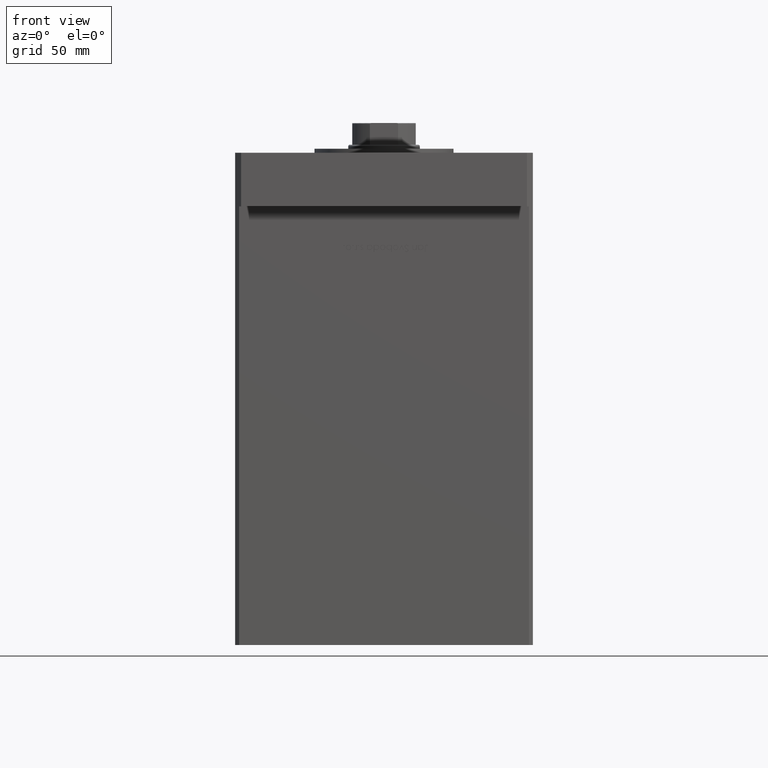
[diagram: clean part render]
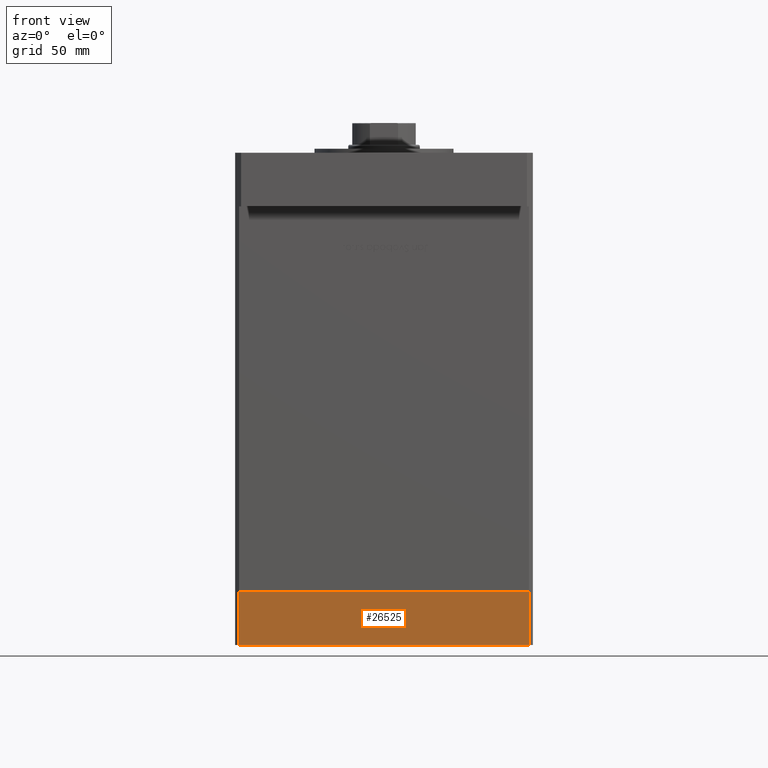
[diagram: same view with one face highlighted and labeled with its STEP entity id]
A machine part, front view. The second image highlights one B-rep face of the part: STEP entity #26525.
In plain terms, the highlighted planar face has unit normal (-0, -1, -0).
Its self-contained STEP definition (entity closure, byte-faithful):
#944 = LINE ( 'NONE', #33973, #9673 ) ;
#2351 = EDGE_CURVE ( 'NONE', #40370, #16569, #46097, .T. ) ;
#2500 = ORIENTED_EDGE ( 'NONE', *, *, #28938, .T. ) ;
#3064 = LINE ( 'NONE', #31494, #17205 ) ;
#5935 = ORIENTED_EDGE ( 'NONE', *, *, #28152, .T. ) ;
#6599 = DIRECTION ( 'NONE',  ( 1.000000000000000000, 9.505334114941407284E-17, 0.000000000000000000 ) ) ;
#8320 = FACE_OUTER_BOUND ( 'NONE', #45238, .T. ) ;
#9673 = VECTOR ( 'NONE', #13676, 1000.000000000000000 ) ;
#11156 = CARTESIAN_POINT ( 'NONE',  ( 73.00000000000001421, -62.50000000000001421, -27.00000000000000000 ) ) ;
#12916 = CARTESIAN_POINT ( 'NONE',  ( -73.00000000000001421, -62.50000000000002842, -27.00000000000000000 ) ) ;
#13676 = DIRECTION ( 'NONE',  ( 1.000000000000000000, 9.505334114941407284E-17, 0.000000000000000000 ) ) ;
#14265 = CARTESIAN_POINT ( 'NONE',  ( 73.00000000000001421, -62.50000000000001421, 0.000000000000000000 ) ) ;
#14460 = DIRECTION ( 'NONE',  ( 9.505334114941407284E-17, -1.000000000000000000, 0.000000000000000000 ) ) ;
#16569 = VERTEX_POINT ( 'NONE', #25301 ) ;
#17205 = VECTOR ( 'NONE', #19593, 1000.000000000000000 ) ;
#18681 = VERTEX_POINT ( 'NONE', #11156 ) ;
#19593 = DIRECTION ( 'NONE',  ( 1.000000000000000000, 9.505334114941407284E-17, 0.000000000000000000 ) ) ;
#22579 = PLANE ( 'NONE',  #38741 ) ;
#25301 = CARTESIAN_POINT ( 'NONE',  ( -73.00000000000001421, -62.50000000000002842, 0.000000000000000000 ) ) ;
#26525 = ADVANCED_FACE ( 'NONE', ( #8320 ), #22579, .T. ) ;
#28152 = EDGE_CURVE ( 'NONE', #18681, #47534, #47629, .T. ) ;
#28938 = EDGE_CURVE ( 'NONE', #40370, #18681, #3064, .T. ) ;
#29577 = DIRECTION ( 'NONE',  ( 0.000000000000000000, 0.000000000000000000, 1.000000000000000000 ) ) ;
#30184 = VECTOR ( 'NONE', #43029, 1000.000000000000000 ) ;
#31494 = CARTESIAN_POINT ( 'NONE',  ( -73.00000000000001421, -62.50000000000002842, -27.00000000000000000 ) ) ;
#33297 = VECTOR ( 'NONE', #29577, 1000.000000000000000 ) ;
#33973 = CARTESIAN_POINT ( 'NONE',  ( -73.00000000000001421, -62.50000000000002842, 0.000000000000000000 ) ) ;
#36872 = EDGE_CURVE ( 'NONE', #16569, #47534, #944, .T. ) ;
#38741 = AXIS2_PLACEMENT_3D ( 'NONE', #38828, #14460, #6599 ) ;
#38780 = CARTESIAN_POINT ( 'NONE',  ( -73.00000000000001421, -62.50000000000002842, -27.00000000000000000 ) ) ;
#38828 = CARTESIAN_POINT ( 'NONE',  ( -73.00000000000001421, -62.50000000000002842, -27.00000000000000000 ) ) ;
#40370 = VERTEX_POINT ( 'NONE', #12916 ) ;
#43029 = DIRECTION ( 'NONE',  ( 0.000000000000000000, 0.000000000000000000, 1.000000000000000000 ) ) ;
#44589 = ORIENTED_EDGE ( 'NONE', *, *, #36872, .F. ) ;
#45238 = EDGE_LOOP ( 'NONE', ( #44589, #45804, #2500, #5935 ) ) ;
#45804 = ORIENTED_EDGE ( 'NONE', *, *, #2351, .F. ) ;
#46097 = LINE ( 'NONE', #38780, #33297 ) ;
#47534 = VERTEX_POINT ( 'NONE', #14265 ) ;
#47629 = LINE ( 'NONE', #51969, #30184 ) ;
#51969 = CARTESIAN_POINT ( 'NONE',  ( 73.00000000000001421, -62.50000000000001421, -27.00000000000000000 ) ) ;